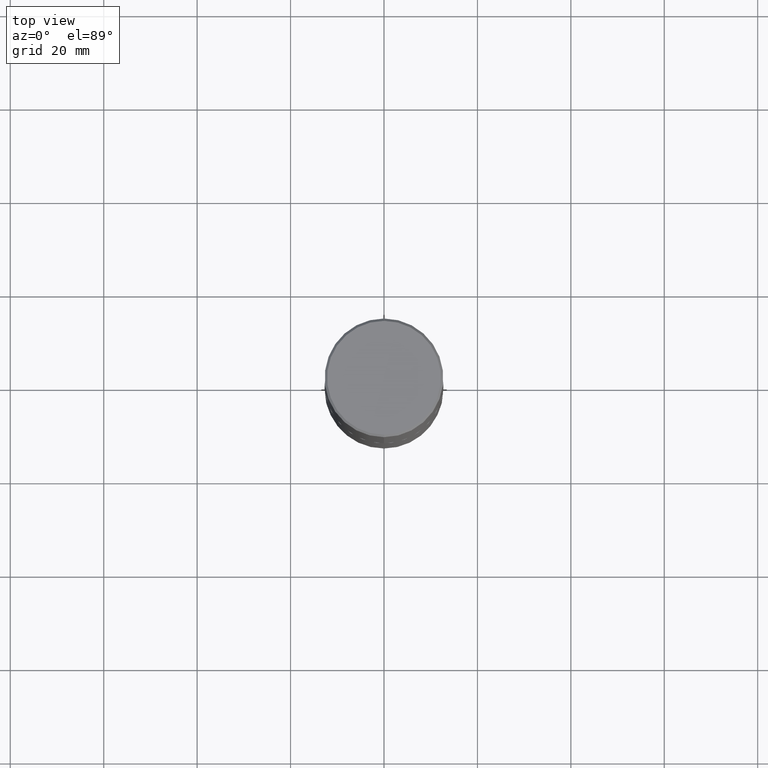
[diagram: clean part render]
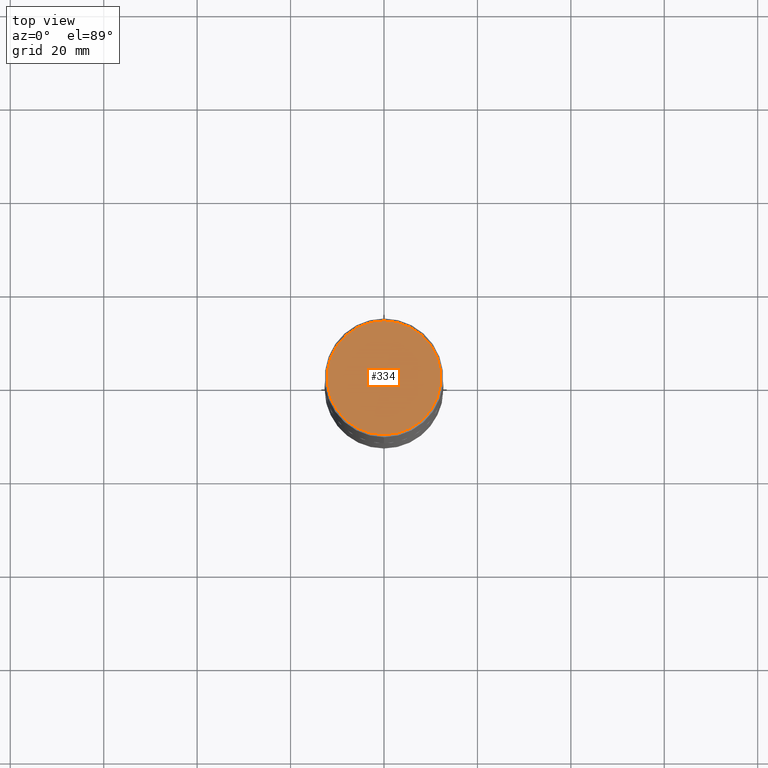
[diagram: same view with one face highlighted and labeled with its STEP entity id]
A machine part, top view. The second image highlights one B-rep face of the part: STEP entity #334.
In plain terms, the highlighted planar face has unit normal (0, -0, -1).
Its self-contained STEP definition (entity closure, byte-faithful):
#26 = CARTESIAN_POINT ( 'NONE',  ( 3.351822085289412675E-15, 0.4800000000000007039, -2.042929871538370540E-15 ) ) ;
#27 = AXIS2_PLACEMENT_3D ( 'NONE', #26, #370, #408 ) ;
#50 = DIRECTION ( 'NONE',  ( -6.982962677686265922E-15, -1.000000000000000000, 3.491176150280740179E-15 ) ) ;
#67 = CARTESIAN_POINT ( 'NONE',  ( 3.421651712066272818E-15, 0.4800000000000007039, -2.410095190941982686E-15 ) ) ;
#82 = VERTEX_POINT ( 'NONE', #228 ) ;
#97 = CARTESIAN_POINT ( 'NONE',  ( 1.795939165325206540E-44, -2.563677612624204865E-30, -7.343306388072249820E-16 ) ) ;
#110 = VERTEX_POINT ( 'NONE', #67 ) ;
#128 = AXIS2_PLACEMENT_3D ( 'NONE', #411, #276, #50 ) ;
#193 = EDGE_CURVE ( 'NONE', #82, #110, #383, .T. ) ;
#228 = CARTESIAN_POINT ( 'NONE',  ( -3.361644018908052422E-15, -0.4800000000000007039, 9.414339133275329191E-16 ) ) ;
#233 = CIRCLE ( 'NONE', #364, 0.4800000000000007039 ) ;
#276 = DIRECTION ( 'NONE',  ( -2.445681918219229661E-29, 3.491176150280740574E-15, 1.000000000000000000 ) ) ;
#312 = PLANE ( 'NONE',  #27 ) ;
#314 = FACE_OUTER_BOUND ( 'NONE', #378, .T. ) ;
#333 = ORIENTED_EDGE ( 'NONE', *, *, #372, .T. ) ;
#334 = ADVANCED_FACE ( 'NONE', ( #314 ), #312, .F. ) ;
#353 = ORIENTED_EDGE ( 'NONE', *, *, #193, .T. ) ;
#354 = DIRECTION ( 'NONE',  ( -2.445681918219229661E-29, 3.491176150280740574E-15, 1.000000000000000000 ) ) ;
#356 = DIRECTION ( 'NONE',  ( -6.982962677686265922E-15, -1.000000000000000000, 3.491176150280740179E-15 ) ) ;
#364 = AXIS2_PLACEMENT_3D ( 'NONE', #97, #354, #356 ) ;
#370 = DIRECTION ( 'NONE',  ( 2.445681918219229381E-29, -3.491176150280740574E-15, -1.000000000000000000 ) ) ;
#372 = EDGE_CURVE ( 'NONE', #110, #82, #233, .T. ) ;
#378 = EDGE_LOOP ( 'NONE', ( #333, #353 ) ) ;
#383 = CIRCLE ( 'NONE', #128, 0.4800000000000007039 ) ;
#408 = DIRECTION ( 'NONE',  ( 6.982962677686265922E-15, 1.000000000000000000, -3.491176150280740574E-15 ) ) ;
#411 = CARTESIAN_POINT ( 'NONE',  ( 1.795939165325206540E-44, -2.563677612624204865E-30, -7.343306388072249820E-16 ) ) ;